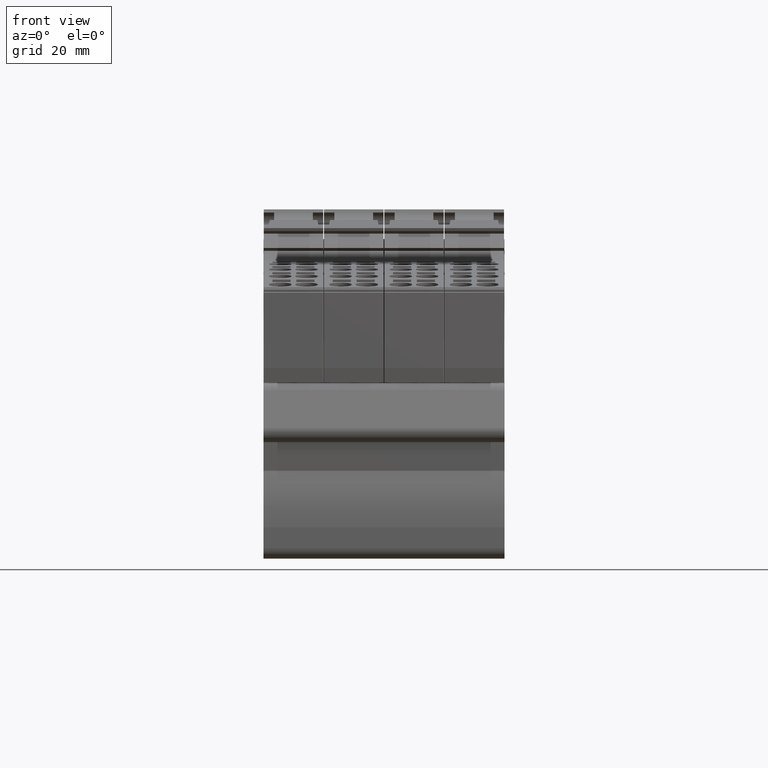
[diagram: clean part render]
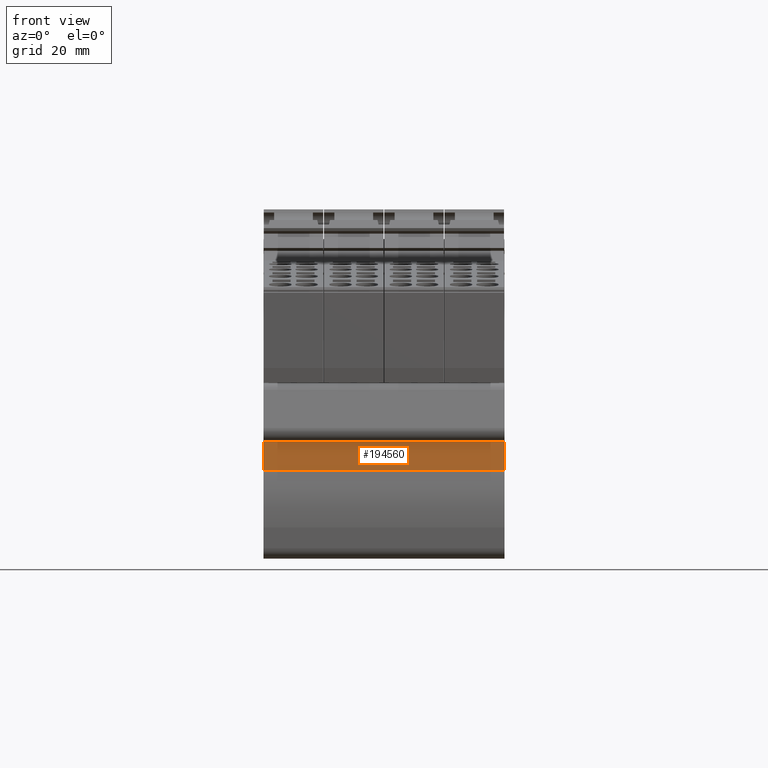
[diagram: same view with one face highlighted and labeled with its STEP entity id]
A machine part, front view. The second image highlights one B-rep face of the part: STEP entity #194560.
In plain terms, the highlighted planar face has unit normal (0, 1, -0).
Its self-contained STEP definition (entity closure, byte-faithful):
#177100=CARTESIAN_POINT('',(179.617847465003,-45.2366806104568,36.45));
#177110=VERTEX_POINT('',#177100);
#177140=CARTESIAN_POINT('',(179.617847465003,-36.5610187575379,36.45));
#177150=DIRECTION('',(-1.05193631583234E-14,-1.,0.));
#177160=VECTOR('',#177150,1.);
#177170=LINE('',#177140,#177160);
#177180=CARTESIAN_POINT('',(179.617847465003,-39.4542780967927,36.45));
#177190=VERTEX_POINT('',#177180);
#177200=EDGE_CURVE('',#177190,#177110,#177170,.T.);
#182550=CARTESIAN_POINT('',(179.617847465003,-39.4542780967927,-12.15));
#182560=VERTEX_POINT('',#182550);
#182590=CARTESIAN_POINT('',(179.617847465003,-36.5610187575379,-12.15));
#182600=DIRECTION('',(-1.05193631583234E-14,-1.,0.));
#182610=VECTOR('',#182600,1.);
#182620=LINE('',#182590,#182610);
#182630=CARTESIAN_POINT('',(179.617847465003,-45.2366806104568,-12.15));
#182640=VERTEX_POINT('',#182630);
#182650=EDGE_CURVE('',#182560,#182640,#182620,.T.);
#194350=CARTESIAN_POINT('',(179.617847465003,-39.9542780967927,
6.14999999999999));
#194360=DIRECTION('',(1.,-1.05193631583234E-14,0.));
#194370=DIRECTION('',(1.05193631583234E-14,1.,0.));
#194380=AXIS2_PLACEMENT_3D('',#194350,#194360,#194370);
#194390=PLANE('',#194380);
#194400=ORIENTED_EDGE('',*,*,#182650,.T.);
#194410=CARTESIAN_POINT('',(179.617847465003,-39.4542780967927,-12.15));
#194420=DIRECTION('',(0.,0.,1.));
#194430=VECTOR('',#194420,1.);
#194440=LINE('',#194410,#194430);
#194450=EDGE_CURVE('',#182560,#177190,#194440,.T.);
#194460=ORIENTED_EDGE('',*,*,#194450,.F.);
#194470=ORIENTED_EDGE('',*,*,#177200,.F.);
#194480=CARTESIAN_POINT('',(179.617847465003,-45.2366806104568,
6.14999999999999));
#194490=DIRECTION('',(0.,0.,1.));
#194500=VECTOR('',#194490,1.);
#194510=LINE('',#194480,#194500);
#194520=EDGE_CURVE('',#182640,#177110,#194510,.T.);
#194530=ORIENTED_EDGE('',*,*,#194520,.T.);
#194540=EDGE_LOOP('',(#194530,#194470,#194460,#194400));
#194550=FACE_OUTER_BOUND('',#194540,.T.);
#194560=ADVANCED_FACE('',(#194550),#194390,.F.);